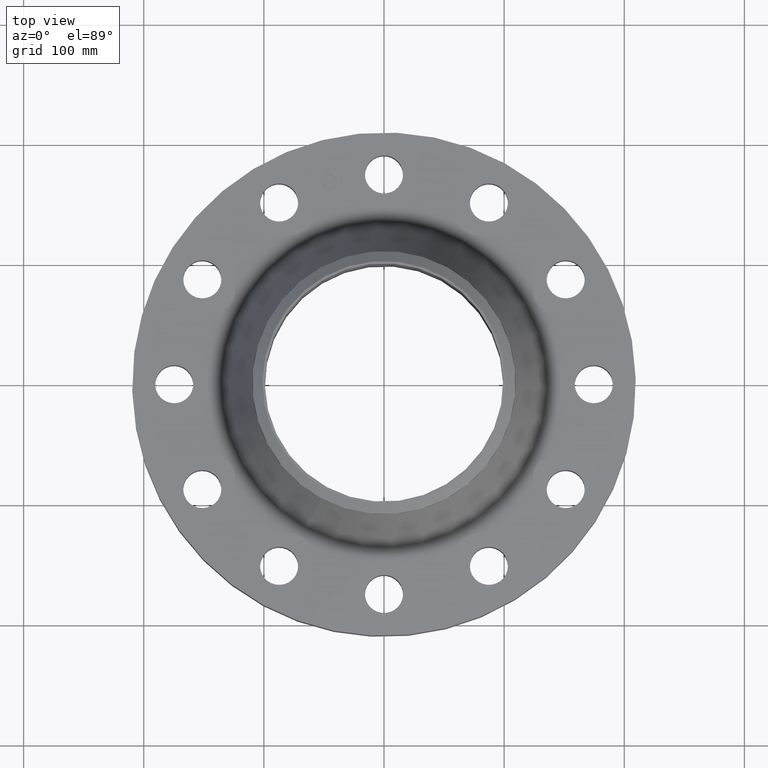
[diagram: clean part render]
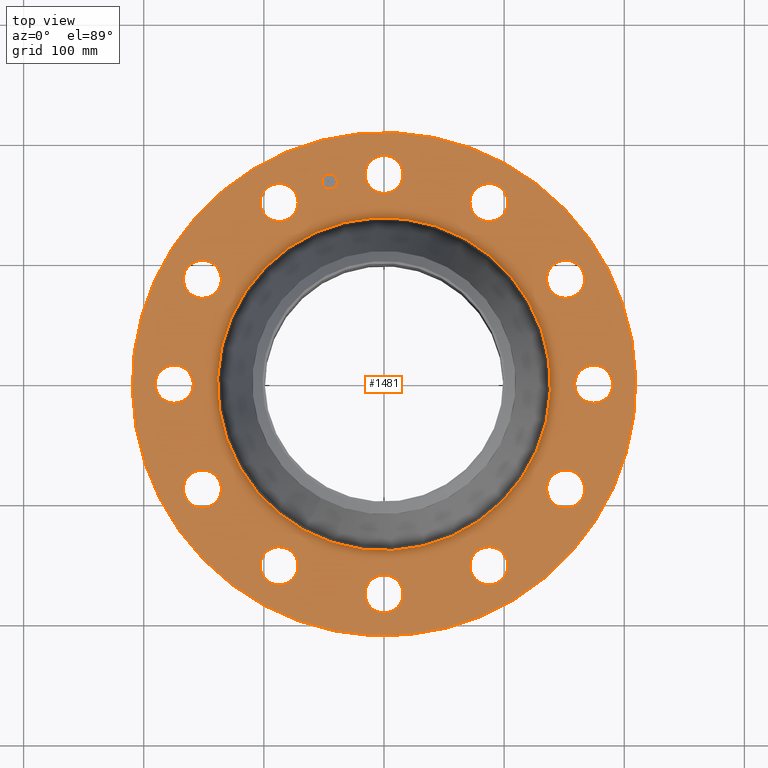
[diagram: same view with one face highlighted and labeled with its STEP entity id]
A machine part, top view. The second image highlights one B-rep face of the part: STEP entity #1481.
In plain terms, the highlighted planar face has unit normal (0, 0, -1).
Its self-contained STEP definition (entity closure, byte-faithful):
#65=AXIS2_PLACEMENT_3D('Circle Axis2P3D',#63,#64,$) ;
#82=AXIS2_PLACEMENT_3D('Circle Axis2P3D',#80,#81,$) ;
#115=AXIS2_PLACEMENT_3D('Circle Axis2P3D',#113,#114,$) ;
#139=AXIS2_PLACEMENT_3D('Circle Axis2P3D',#137,#138,$) ;
#156=AXIS2_PLACEMENT_3D('Circle Axis2P3D',#154,#155,$) ;
#191=AXIS2_PLACEMENT_3D('Circle Axis2P3D',#189,#190,$) ;
#718=AXIS2_PLACEMENT_3D('Circle Axis2P3D',#716,#717,$) ;
#730=AXIS2_PLACEMENT_3D('Circle Axis2P3D',#728,#729,$) ;
#761=AXIS2_PLACEMENT_3D('Circle Axis2P3D',#759,#760,$) ;
#773=AXIS2_PLACEMENT_3D('Circle Axis2P3D',#771,#772,$) ;
#804=AXIS2_PLACEMENT_3D('Circle Axis2P3D',#802,#803,$) ;
#816=AXIS2_PLACEMENT_3D('Circle Axis2P3D',#814,#815,$) ;
#847=AXIS2_PLACEMENT_3D('Circle Axis2P3D',#845,#846,$) ;
#859=AXIS2_PLACEMENT_3D('Circle Axis2P3D',#857,#858,$) ;
#890=AXIS2_PLACEMENT_3D('Circle Axis2P3D',#888,#889,$) ;
#902=AXIS2_PLACEMENT_3D('Circle Axis2P3D',#900,#901,$) ;
#933=AXIS2_PLACEMENT_3D('Circle Axis2P3D',#931,#932,$) ;
#945=AXIS2_PLACEMENT_3D('Circle Axis2P3D',#943,#944,$) ;
#976=AXIS2_PLACEMENT_3D('Circle Axis2P3D',#974,#975,$) ;
#988=AXIS2_PLACEMENT_3D('Circle Axis2P3D',#986,#987,$) ;
#1019=AXIS2_PLACEMENT_3D('Circle Axis2P3D',#1017,#1018,$) ;
#1031=AXIS2_PLACEMENT_3D('Circle Axis2P3D',#1029,#1030,$) ;
#1062=AXIS2_PLACEMENT_3D('Circle Axis2P3D',#1060,#1061,$) ;
#1074=AXIS2_PLACEMENT_3D('Circle Axis2P3D',#1072,#1073,$) ;
#1105=AXIS2_PLACEMENT_3D('Circle Axis2P3D',#1103,#1104,$) ;
#1117=AXIS2_PLACEMENT_3D('Circle Axis2P3D',#1115,#1116,$) ;
#1148=AXIS2_PLACEMENT_3D('Circle Axis2P3D',#1146,#1147,$) ;
#1160=AXIS2_PLACEMENT_3D('Circle Axis2P3D',#1158,#1159,$) ;
#1405=AXIS2_PLACEMENT_3D('Plane Axis2P3D',#1402,#1403,#1404) ;
#1465=AXIS2_PLACEMENT_3D('Circle Axis2P3D',#1463,#1464,$) ;
#1474=AXIS2_PLACEMENT_3D('Circle Axis2P3D',#1472,#1473,$) ;
#46=CARTESIAN_POINT('Vertex',(-0.548489101184,7.17464096166,2.19000000001)) ;
#60=CARTESIAN_POINT('Vertex',(0.548489101184,6.5753590384,2.19000000001)) ;
#63=CARTESIAN_POINT('Axis2P3D Location',(0.,6.87500000003,2.19000000001)) ;
#80=CARTESIAN_POINT('Axis2P3D Location',(0.,6.87500000003,2.19000000001)) ;
#110=CARTESIAN_POINT('Vertex',(-3.9552606935,-7.24005613562,2.19000000001)) ;
#113=CARTESIAN_POINT('Axis2P3D Location',(0.,0.,2.19000000001)) ;
#117=CARTESIAN_POINT('Vertex',(3.9552606935,7.24005613562,2.19000000001)) ;
#137=CARTESIAN_POINT('Axis2P3D Location',(0.,0.,2.19000000001)) ;
#154=CARTESIAN_POINT('Axis2P3D Location',(0.,0.,2.19000000001)) ;
#158=CARTESIAN_POINT('Vertex',(2.6154202133,4.78749458756,2.19000000001)) ;
#160=CARTESIAN_POINT('Vertex',(-2.6154202133,-4.78749458756,2.19000000001)) ;
#189=CARTESIAN_POINT('Axis2P3D Location',(0.,0.,2.19000000001)) ;
#706=CARTESIAN_POINT('Vertex',(-3.1123149855,-6.48766588642,2.19000000001)) ;
#713=CARTESIAN_POINT('Vertex',(-3.76268501452,-5.42018341567,2.19000000001)) ;
#716=CARTESIAN_POINT('Axis2P3D Location',(-3.43750000001,-5.95392465104,2.19000000001)) ;
#728=CARTESIAN_POINT('Axis2P3D Location',(-3.43750000001,-5.95392465104,2.19000000001)) ;
#749=CARTESIAN_POINT('Vertex',(5.93917678523,4.06232597615,2.19000000001)) ;
#756=CARTESIAN_POINT('Vertex',(5.96867251685,2.81267402388,2.19000000001)) ;
#759=CARTESIAN_POINT('Axis2P3D Location',(5.95392465104,3.43750000001,2.19000000001)) ;
#771=CARTESIAN_POINT('Axis2P3D Location',(5.95392465104,3.43750000001,2.19000000001)) ;
#792=CARTESIAN_POINT('Vertex',(-5.93917678523,-4.06232597615,2.19000000001)) ;
#799=CARTESIAN_POINT('Vertex',(-5.96867251685,-2.81267402388,2.19000000001)) ;
#802=CARTESIAN_POINT('Axis2P3D Location',(-5.95392465104,-3.43750000001,2.19000000001)) ;
#814=CARTESIAN_POINT('Axis2P3D Location',(-5.95392465104,-3.43750000001,2.19000000001)) ;
#835=CARTESIAN_POINT('Vertex',(7.17464096166,0.548489101184,2.19000000001)) ;
#842=CARTESIAN_POINT('Vertex',(6.5753590384,-0.548489101184,2.19000000001)) ;
#845=CARTESIAN_POINT('Axis2P3D Location',(6.87500000003,-6.97992600996E-016,2.19000000001)) ;
#857=CARTESIAN_POINT('Axis2P3D Location',(6.87500000003,-6.97992600996E-016,2.19000000001)) ;
#878=CARTESIAN_POINT('Vertex',(-7.17464096166,-0.548489101184,2.19000000001)) ;
#885=CARTESIAN_POINT('Vertex',(-6.5753590384,0.548489101184,2.19000000001)) ;
#888=CARTESIAN_POINT('Axis2P3D Location',(-6.87500000003,-1.26291701163E-015,2.19000000001)) ;
#900=CARTESIAN_POINT('Axis2P3D Location',(-6.87500000003,-1.26291701163E-015,2.19000000001)) ;
#921=CARTESIAN_POINT('Vertex',(6.48766588642,-3.1123149855,2.19000000001)) ;
#928=CARTESIAN_POINT('Vertex',(5.42018341567,-3.76268501452,2.19000000001)) ;
#931=CARTESIAN_POINT('Axis2P3D Location',(5.95392465104,-3.43750000001,2.19000000001)) ;
#943=CARTESIAN_POINT('Axis2P3D Location',(5.95392465104,-3.43750000001,2.19000000001)) ;
#964=CARTESIAN_POINT('Vertex',(-6.48766588642,3.1123149855,2.19000000001)) ;
#971=CARTESIAN_POINT('Vertex',(-5.42018341567,3.76268501452,2.19000000001)) ;
#974=CARTESIAN_POINT('Axis2P3D Location',(-5.95392465104,3.43750000001,2.19000000001)) ;
#986=CARTESIAN_POINT('Axis2P3D Location',(-5.95392465104,3.43750000001,2.19000000001)) ;
#1007=CARTESIAN_POINT('Vertex',(4.06232597615,-5.93917678523,2.19000000001)) ;
#1014=CARTESIAN_POINT('Vertex',(2.81267402388,-5.96867251685,2.19000000001)) ;
#1017=CARTESIAN_POINT('Axis2P3D Location',(3.43750000001,-5.95392465104,2.19000000001)) ;
#1029=CARTESIAN_POINT('Axis2P3D Location',(3.43750000001,-5.95392465104,2.19000000001)) ;
#1050=CARTESIAN_POINT('Vertex',(-4.06232597615,5.93917678523,2.19000000001)) ;
#1057=CARTESIAN_POINT('Vertex',(-2.81267402388,5.96867251685,2.19000000001)) ;
#1060=CARTESIAN_POINT('Axis2P3D Location',(-3.43750000001,5.95392465104,2.19000000001)) ;
#1072=CARTESIAN_POINT('Axis2P3D Location',(-3.43750000001,5.95392465104,2.19000000001)) ;
#1093=CARTESIAN_POINT('Vertex',(0.548489101184,-7.17464096166,2.19000000001)) ;
#1100=CARTESIAN_POINT('Vertex',(-0.548489101184,-6.5753590384,2.19000000001)) ;
#1103=CARTESIAN_POINT('Axis2P3D Location',(8.41944674417E-016,-6.87500000003,2.19000000001)) ;
#1115=CARTESIAN_POINT('Axis2P3D Location',(8.41944674417E-016,-6.87500000003,2.19000000001)) ;
#1136=CARTESIAN_POINT('Vertex',(3.1123149855,6.48766588642,2.19000000001)) ;
#1143=CARTESIAN_POINT('Vertex',(3.76268501452,5.42018341567,2.19000000001)) ;
#1146=CARTESIAN_POINT('Axis2P3D Location',(3.43750000001,5.95392465104,2.19000000001)) ;
#1158=CARTESIAN_POINT('Axis2P3D Location',(3.43750000001,5.95392465104,2.19000000001)) ;
#1402=CARTESIAN_POINT('Axis2P3D Location',(0.,8.25000000003,2.19000000001)) ;
#1463=CARTESIAN_POINT('Axis2P3D Location',(-1.77938093509,6.64074005576,2.19000000001)) ;
#1467=CARTESIAN_POINT('Vertex',(-2.01844757709,6.5766823421,2.19000000001)) ;
#1469=CARTESIAN_POINT('Vertex',(-1.54031429308,6.70479776943,2.19000000001)) ;
#1472=CARTESIAN_POINT('Axis2P3D Location',(-1.77938093509,6.64074005576,2.19000000001)) ;
#64=DIRECTION('Axis2P3D Direction',(0.,-0.,-0.0393700787402)) ;
#81=DIRECTION('Axis2P3D Direction',(0.,-0.,-0.0393700787402)) ;
#114=DIRECTION('Axis2P3D Direction',(0.,0.,-0.0393700787402)) ;
#138=DIRECTION('Axis2P3D Direction',(0.,0.,-0.0393700787402)) ;
#155=DIRECTION('Axis2P3D Direction',(0.,0.,-0.0393700787402)) ;
#190=DIRECTION('Axis2P3D Direction',(0.,0.,-0.0393700787402)) ;
#717=DIRECTION('Axis2P3D Direction',(0.,0.,-0.0393700787402)) ;
#729=DIRECTION('Axis2P3D Direction',(0.,0.,-0.0393700787402)) ;
#760=DIRECTION('Axis2P3D Direction',(0.,-0.,-0.0393700787402)) ;
#772=DIRECTION('Axis2P3D Direction',(0.,-0.,-0.0393700787402)) ;
#803=DIRECTION('Axis2P3D Direction',(0.,0.,-0.0393700787402)) ;
#815=DIRECTION('Axis2P3D Direction',(0.,0.,-0.0393700787402)) ;
#846=DIRECTION('Axis2P3D Direction',(0.,-0.,-0.0393700787402)) ;
#858=DIRECTION('Axis2P3D Direction',(0.,-0.,-0.0393700787402)) ;
#889=DIRECTION('Axis2P3D Direction',(0.,0.,-0.0393700787402)) ;
#901=DIRECTION('Axis2P3D Direction',(0.,0.,-0.0393700787402)) ;
#932=DIRECTION('Axis2P3D Direction',(-0.,0.,-0.0393700787402)) ;
#944=DIRECTION('Axis2P3D Direction',(-0.,0.,-0.0393700787402)) ;
#975=DIRECTION('Axis2P3D Direction',(0.,0.,-0.0393700787402)) ;
#987=DIRECTION('Axis2P3D Direction',(0.,0.,-0.0393700787402)) ;
#1018=DIRECTION('Axis2P3D Direction',(-0.,0.,-0.0393700787402)) ;
#1030=DIRECTION('Axis2P3D Direction',(-0.,0.,-0.0393700787402)) ;
#1061=DIRECTION('Axis2P3D Direction',(0.,0.,-0.0393700787402)) ;
#1073=DIRECTION('Axis2P3D Direction',(0.,0.,-0.0393700787402)) ;
#1104=DIRECTION('Axis2P3D Direction',(-0.,0.,-0.0393700787402)) ;
#1116=DIRECTION('Axis2P3D Direction',(-0.,0.,-0.0393700787402)) ;
#1147=DIRECTION('Axis2P3D Direction',(0.,-0.,-0.0393700787402)) ;
#1159=DIRECTION('Axis2P3D Direction',(0.,-0.,-0.0393700787402)) ;
#1403=DIRECTION('Axis2P3D Direction',(0.,0.,-0.0393700787402)) ;
#1404=DIRECTION('Axis2P3D XDirection',(0.0393700787402,0.,0.)) ;
#1464=DIRECTION('Axis2P3D Direction',(0.,0.,-0.0393700787402)) ;
#1473=DIRECTION('Axis2P3D Direction',(0.,0.,-0.0393700787402)) ;
#1408=ORIENTED_EDGE('',*,*,#141,.F.) ;
#1409=ORIENTED_EDGE('',*,*,#119,.F.) ;
#1412=ORIENTED_EDGE('',*,*,#67,.T.) ;
#1413=ORIENTED_EDGE('',*,*,#84,.T.) ;
#1416=ORIENTED_EDGE('',*,*,#193,.T.) ;
#1417=ORIENTED_EDGE('',*,*,#162,.T.) ;
#1420=ORIENTED_EDGE('',*,*,#1162,.T.) ;
#1421=ORIENTED_EDGE('',*,*,#1150,.T.) ;
#1424=ORIENTED_EDGE('',*,*,#775,.T.) ;
#1425=ORIENTED_EDGE('',*,*,#763,.T.) ;
#1428=ORIENTED_EDGE('',*,*,#861,.T.) ;
#1429=ORIENTED_EDGE('',*,*,#849,.T.) ;
#1432=ORIENTED_EDGE('',*,*,#947,.T.) ;
#1433=ORIENTED_EDGE('',*,*,#935,.T.) ;
#1436=ORIENTED_EDGE('',*,*,#1033,.T.) ;
#1437=ORIENTED_EDGE('',*,*,#1021,.T.) ;
#1440=ORIENTED_EDGE('',*,*,#1119,.T.) ;
#1441=ORIENTED_EDGE('',*,*,#1107,.T.) ;
#1444=ORIENTED_EDGE('',*,*,#732,.T.) ;
#1445=ORIENTED_EDGE('',*,*,#720,.T.) ;
#1448=ORIENTED_EDGE('',*,*,#818,.T.) ;
#1449=ORIENTED_EDGE('',*,*,#806,.T.) ;
#1452=ORIENTED_EDGE('',*,*,#904,.T.) ;
#1453=ORIENTED_EDGE('',*,*,#892,.T.) ;
#1456=ORIENTED_EDGE('',*,*,#990,.T.) ;
#1457=ORIENTED_EDGE('',*,*,#978,.T.) ;
#1460=ORIENTED_EDGE('',*,*,#1076,.T.) ;
#1461=ORIENTED_EDGE('',*,*,#1064,.T.) ;
#1478=ORIENTED_EDGE('',*,*,#1471,.T.) ;
#1479=ORIENTED_EDGE('',*,*,#1476,.T.) ;
#1414=FACE_BOUND('',#1411,.T.) ;
#1418=FACE_BOUND('',#1415,.T.) ;
#1422=FACE_BOUND('',#1419,.T.) ;
#1426=FACE_BOUND('',#1423,.T.) ;
#1430=FACE_BOUND('',#1427,.T.) ;
#1434=FACE_BOUND('',#1431,.T.) ;
#1438=FACE_BOUND('',#1435,.T.) ;
#1442=FACE_BOUND('',#1439,.T.) ;
#1446=FACE_BOUND('',#1443,.T.) ;
#1450=FACE_BOUND('',#1447,.T.) ;
#1454=FACE_BOUND('',#1451,.T.) ;
#1458=FACE_BOUND('',#1455,.T.) ;
#1462=FACE_BOUND('',#1459,.T.) ;
#1480=FACE_BOUND('',#1477,.T.) ;
#1481=ADVANCED_FACE('PartBody',(#1410,#1414,#1418,#1422,#1426,#1430,#1434,#1438,#1442,#1446,#1450,#1454,#1458,#1462,#1480),#1406,.F.) ;
#66=CIRCLE('generated circle',#65,0.625000000003) ;
#83=CIRCLE('generated circle',#82,0.625000000003) ;
#116=CIRCLE('generated circle',#115,8.25000000003) ;
#140=CIRCLE('generated circle',#139,8.25000000003) ;
#157=CIRCLE('generated circle',#156,5.45532100962) ;
#192=CIRCLE('generated circle',#191,5.45532100962) ;
#719=CIRCLE('generated circle',#718,0.625000000003) ;
#731=CIRCLE('generated circle',#730,0.625000000003) ;
#762=CIRCLE('generated circle',#761,0.625000000003) ;
#774=CIRCLE('generated circle',#773,0.625000000003) ;
#805=CIRCLE('generated circle',#804,0.625000000003) ;
#817=CIRCLE('generated circle',#816,0.625000000003) ;
#848=CIRCLE('generated circle',#847,0.625000000003) ;
#860=CIRCLE('generated circle',#859,0.625000000003) ;
#891=CIRCLE('generated circle',#890,0.625000000003) ;
#903=CIRCLE('generated circle',#902,0.625000000003) ;
#934=CIRCLE('generated circle',#933,0.625000000003) ;
#946=CIRCLE('generated circle',#945,0.625000000003) ;
#977=CIRCLE('generated circle',#976,0.625000000003) ;
#989=CIRCLE('generated circle',#988,0.625000000003) ;
#1020=CIRCLE('generated circle',#1019,0.625000000003) ;
#1032=CIRCLE('generated circle',#1031,0.625000000003) ;
#1063=CIRCLE('generated circle',#1062,0.625000000003) ;
#1075=CIRCLE('generated circle',#1074,0.625000000003) ;
#1106=CIRCLE('generated circle',#1105,0.625000000003) ;
#1118=CIRCLE('generated circle',#1117,0.625000000003) ;
#1149=CIRCLE('generated circle',#1148,0.625000000003) ;
#1161=CIRCLE('generated circle',#1160,0.625000000003) ;
#1466=CIRCLE('generated circle',#1465,0.247500000001) ;
#1475=CIRCLE('generated circle',#1474,0.247500000001) ;
#67=EDGE_CURVE('',#47,#61,#66,.T.) ;
#84=EDGE_CURVE('',#61,#47,#83,.T.) ;
#119=EDGE_CURVE('',#111,#118,#116,.T.) ;
#141=EDGE_CURVE('',#118,#111,#140,.T.) ;
#162=EDGE_CURVE('',#159,#161,#157,.T.) ;
#193=EDGE_CURVE('',#161,#159,#192,.T.) ;
#720=EDGE_CURVE('',#707,#714,#719,.T.) ;
#732=EDGE_CURVE('',#714,#707,#731,.T.) ;
#763=EDGE_CURVE('',#750,#757,#762,.T.) ;
#775=EDGE_CURVE('',#757,#750,#774,.T.) ;
#806=EDGE_CURVE('',#793,#800,#805,.T.) ;
#818=EDGE_CURVE('',#800,#793,#817,.T.) ;
#849=EDGE_CURVE('',#836,#843,#848,.T.) ;
#861=EDGE_CURVE('',#843,#836,#860,.T.) ;
#892=EDGE_CURVE('',#879,#886,#891,.T.) ;
#904=EDGE_CURVE('',#886,#879,#903,.T.) ;
#935=EDGE_CURVE('',#922,#929,#934,.T.) ;
#947=EDGE_CURVE('',#929,#922,#946,.T.) ;
#978=EDGE_CURVE('',#965,#972,#977,.T.) ;
#990=EDGE_CURVE('',#972,#965,#989,.T.) ;
#1021=EDGE_CURVE('',#1008,#1015,#1020,.T.) ;
#1033=EDGE_CURVE('',#1015,#1008,#1032,.T.) ;
#1064=EDGE_CURVE('',#1051,#1058,#1063,.T.) ;
#1076=EDGE_CURVE('',#1058,#1051,#1075,.T.) ;
#1107=EDGE_CURVE('',#1094,#1101,#1106,.T.) ;
#1119=EDGE_CURVE('',#1101,#1094,#1118,.T.) ;
#1150=EDGE_CURVE('',#1137,#1144,#1149,.T.) ;
#1162=EDGE_CURVE('',#1144,#1137,#1161,.T.) ;
#1471=EDGE_CURVE('',#1468,#1470,#1466,.T.) ;
#1476=EDGE_CURVE('',#1470,#1468,#1475,.T.) ;
#1407=EDGE_LOOP('',(#1408,#1409)) ;
#1411=EDGE_LOOP('',(#1412,#1413)) ;
#1415=EDGE_LOOP('',(#1416,#1417)) ;
#1419=EDGE_LOOP('',(#1420,#1421)) ;
#1423=EDGE_LOOP('',(#1424,#1425)) ;
#1427=EDGE_LOOP('',(#1428,#1429)) ;
#1431=EDGE_LOOP('',(#1432,#1433)) ;
#1435=EDGE_LOOP('',(#1436,#1437)) ;
#1439=EDGE_LOOP('',(#1440,#1441)) ;
#1443=EDGE_LOOP('',(#1444,#1445)) ;
#1447=EDGE_LOOP('',(#1448,#1449)) ;
#1451=EDGE_LOOP('',(#1452,#1453)) ;
#1455=EDGE_LOOP('',(#1456,#1457)) ;
#1459=EDGE_LOOP('',(#1460,#1461)) ;
#1477=EDGE_LOOP('',(#1478,#1479)) ;
#1410=FACE_OUTER_BOUND('',#1407,.T.) ;
#1406=PLANE('',#1405) ;
#47=VERTEX_POINT('',#46) ;
#61=VERTEX_POINT('',#60) ;
#111=VERTEX_POINT('',#110) ;
#118=VERTEX_POINT('',#117) ;
#159=VERTEX_POINT('',#158) ;
#161=VERTEX_POINT('',#160) ;
#707=VERTEX_POINT('',#706) ;
#714=VERTEX_POINT('',#713) ;
#750=VERTEX_POINT('',#749) ;
#757=VERTEX_POINT('',#756) ;
#793=VERTEX_POINT('',#792) ;
#800=VERTEX_POINT('',#799) ;
#836=VERTEX_POINT('',#835) ;
#843=VERTEX_POINT('',#842) ;
#879=VERTEX_POINT('',#878) ;
#886=VERTEX_POINT('',#885) ;
#922=VERTEX_POINT('',#921) ;
#929=VERTEX_POINT('',#928) ;
#965=VERTEX_POINT('',#964) ;
#972=VERTEX_POINT('',#971) ;
#1008=VERTEX_POINT('',#1007) ;
#1015=VERTEX_POINT('',#1014) ;
#1051=VERTEX_POINT('',#1050) ;
#1058=VERTEX_POINT('',#1057) ;
#1094=VERTEX_POINT('',#1093) ;
#1101=VERTEX_POINT('',#1100) ;
#1137=VERTEX_POINT('',#1136) ;
#1144=VERTEX_POINT('',#1143) ;
#1468=VERTEX_POINT('',#1467) ;
#1470=VERTEX_POINT('',#1469) ;